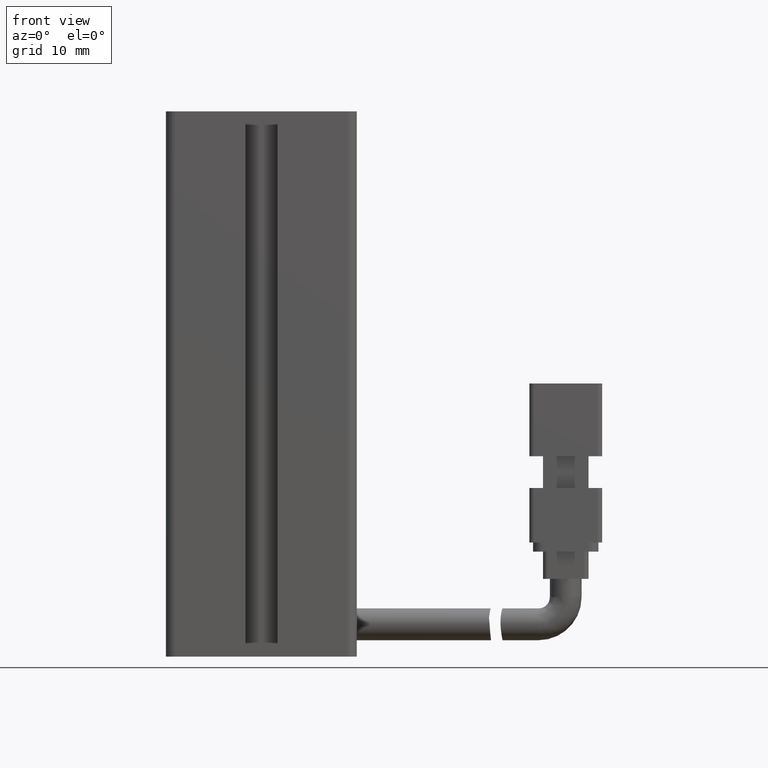
[diagram: clean part render]
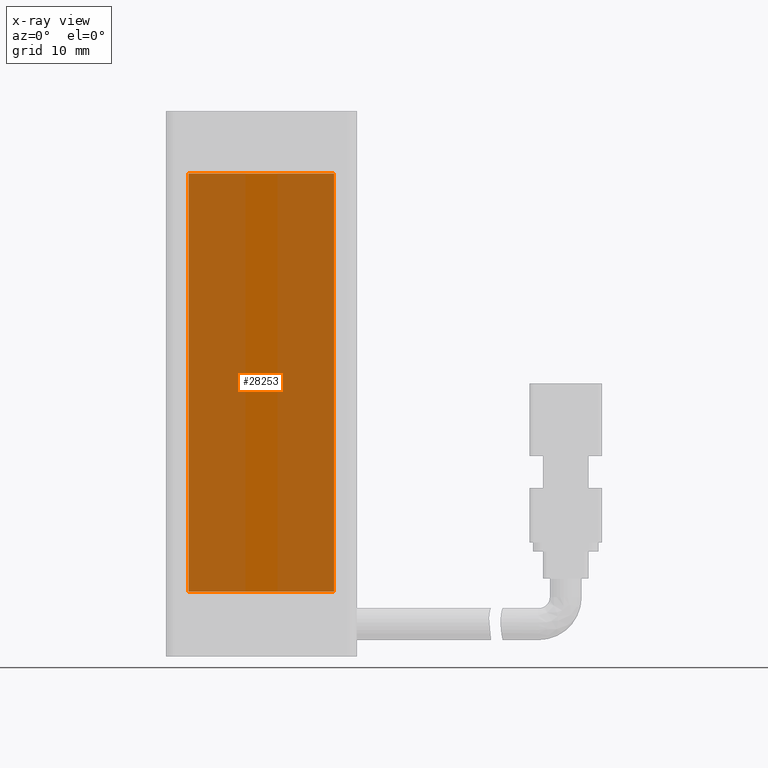
[diagram: x-ray — body ghosted, one internal face saturated and labeled with its STEP entity id]
A machine part, front view, then the same camera in x-ray: the body is ghosted and one INTERNAL B-rep face — a face not visible from any outside direction — is saturated and labeled: STEP entity #28253.
In plain terms, the highlighted planar face has unit normal (0, 1, 0).
Its self-contained STEP definition (entity closure, byte-faithful):
#48 = ORIENTED_EDGE ( 'NONE', *, *, #23600, .F. ) ;
#905 = EDGE_CURVE ( 'NONE', #23026, #20507, #9823, .T. ) ;
#2456 = DIRECTION ( 'NONE',  ( 0.0000000000000000000, -0.0000000000000000000, 1.000000000000000000 ) ) ;
#2630 = CARTESIAN_POINT ( 'NONE',  ( 30.42537974683541400, 19.58379746835444000, -137.8499999999999900 ) ) ;
#3548 = LINE ( 'NONE', #2630, #27258 ) ;
#6004 = DIRECTION ( 'NONE',  ( -0.0000000000000000000, 0.0000000000000000000, -1.000000000000000000 ) ) ;
#6963 = VERTEX_POINT ( 'NONE', #21926 ) ;
#7065 = VECTOR ( 'NONE', #24099, 1000.000000000000000 ) ;
#7665 = CARTESIAN_POINT ( 'NONE',  ( 22.42537974683541400, 19.58379746835444000, -91.84999999999999400 ) ) ;
#8763 = CARTESIAN_POINT ( 'NONE',  ( 38.42537974683541800, 19.58379746835444000, -114.8500000000000100 ) ) ;
#9308 = CARTESIAN_POINT ( 'NONE',  ( 38.42537974683541800, 19.58379746835444000, -137.8499999999999900 ) ) ;
#9443 = DIRECTION ( 'NONE',  ( -1.000000000000000000, 0.0000000000000000000, 0.0000000000000000000 ) ) ;
#9823 = LINE ( 'NONE', #8763, #7065 ) ;
#11896 = EDGE_CURVE ( 'NONE', #20507, #6963, #3548, .T. ) ;
#12605 = VECTOR ( 'NONE', #2456, 1000.000000000000000 ) ;
#12661 = CARTESIAN_POINT ( 'NONE',  ( 30.42537974683541400, 19.58379746835444000, -91.84999999999999400 ) ) ;
#12939 = ORIENTED_EDGE ( 'NONE', *, *, #25169, .F. ) ;
#14576 = EDGE_LOOP ( 'NONE', ( #48, #28240, #25155, #12939 ) ) ;
#19653 = CARTESIAN_POINT ( 'NONE',  ( 38.42537974683541800, 19.58379746835444000, -91.84999999999999400 ) ) ;
#20481 = LINE ( 'NONE', #22290, #12605 ) ;
#20507 = VERTEX_POINT ( 'NONE', #9308 ) ;
#21276 = VECTOR ( 'NONE', #28051, 1000.000000000000000 ) ;
#21359 = CARTESIAN_POINT ( 'NONE',  ( 30.42537974683541400, 19.58379746835444000, -114.8500000000000100 ) ) ;
#21926 = CARTESIAN_POINT ( 'NONE',  ( 22.42537974683541400, 19.58379746835444000, -137.8499999999999900 ) ) ;
#22290 = CARTESIAN_POINT ( 'NONE',  ( 22.42537974683541400, 19.58379746835444000, -114.8500000000000100 ) ) ;
#23026 = VERTEX_POINT ( 'NONE', #19653 ) ;
#23276 = VERTEX_POINT ( 'NONE', #7665 ) ;
#23600 = EDGE_CURVE ( 'NONE', #6963, #23276, #20481, .T. ) ;
#24099 = DIRECTION ( 'NONE',  ( -0.0000000000000000000, 0.0000000000000000000, -1.000000000000000000 ) ) ;
#25155 = ORIENTED_EDGE ( 'NONE', *, *, #905, .F. ) ;
#25169 = EDGE_CURVE ( 'NONE', #23276, #23026, #27847, .T. ) ;
#25482 = PLANE ( 'NONE',  #27495 ) ;
#27258 = VECTOR ( 'NONE', #9443, 1000.000000000000000 ) ;
#27495 = AXIS2_PLACEMENT_3D ( 'NONE', #21359, #27931, #6004 ) ;
#27847 = LINE ( 'NONE', #12661, #21276 ) ;
#27931 = DIRECTION ( 'NONE',  ( 0.0000000000000000000, 1.000000000000000000, 0.0000000000000000000 ) ) ;
#28051 = DIRECTION ( 'NONE',  ( 1.000000000000000000, -0.0000000000000000000, -0.0000000000000000000 ) ) ;
#28240 = ORIENTED_EDGE ( 'NONE', *, *, #11896, .F. ) ;
#28253 = ADVANCED_FACE ( 'NONE', ( #28416 ), #25482, .F. ) ;
#28416 = FACE_OUTER_BOUND ( 'NONE', #14576, .T. ) ;